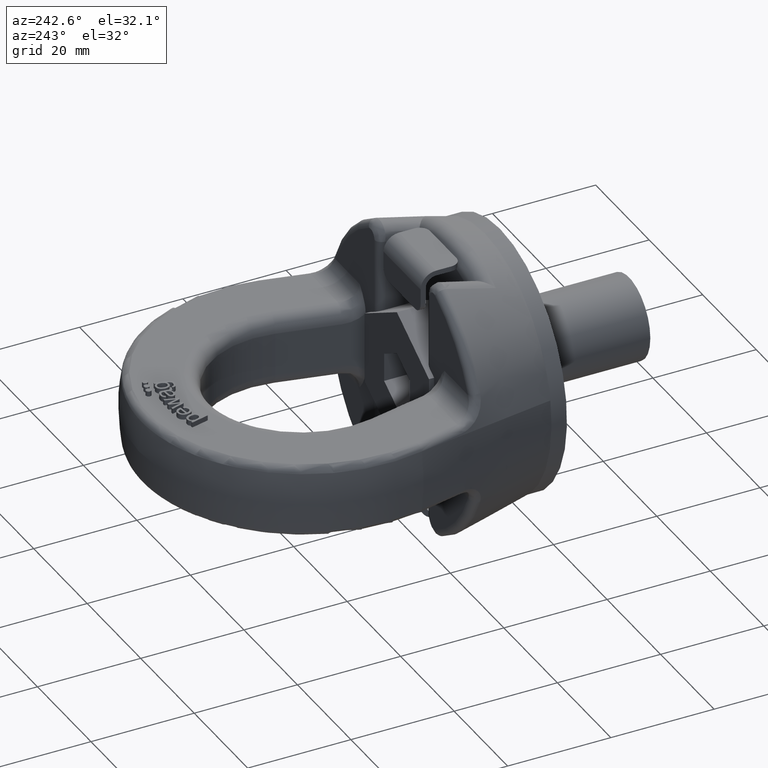
[diagram: clean part render]
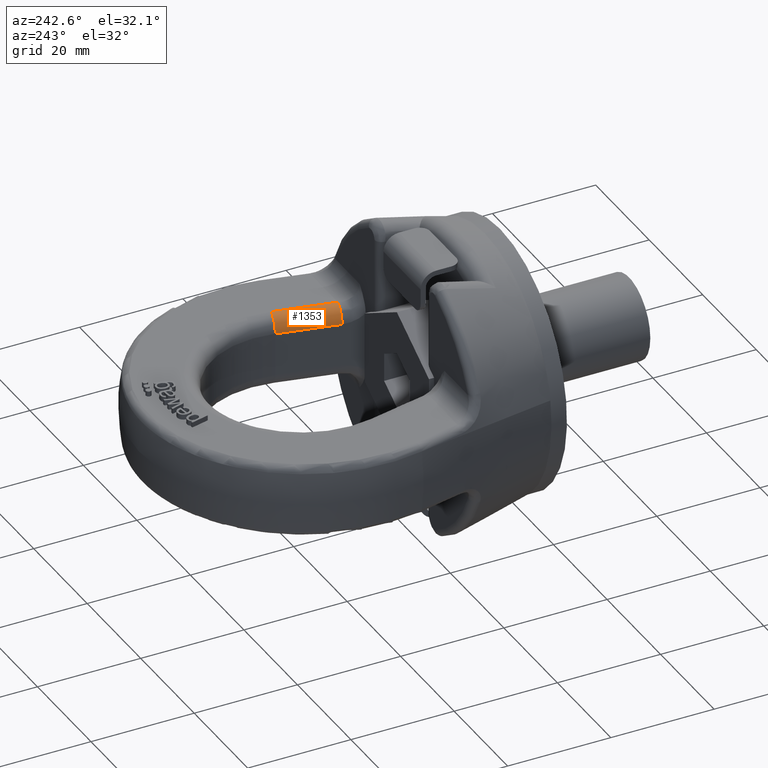
[diagram: same view with one face highlighted and labeled with its STEP entity id]
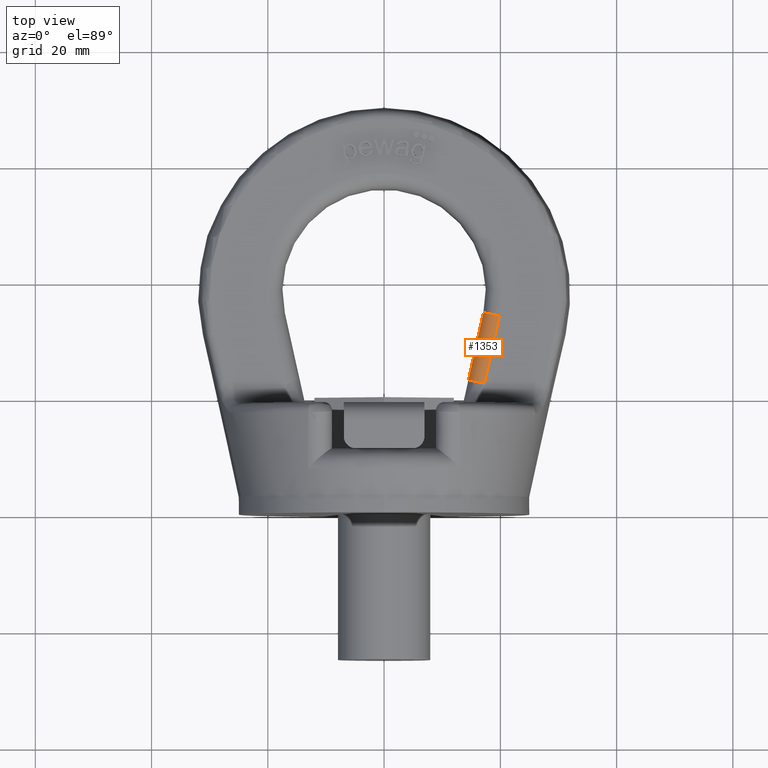
[diagram: same view with one face highlighted and labeled with its STEP entity id]
A machine part, auxiliary view. The second image highlights one B-rep face of the part: STEP entity #1353.
A second angle (top view) of the same face is appended — the face is thin or edge-on in the first view.
In plain terms, the highlighted cylindrical surface (edge-blend (fillet) strip) has radius 2.8 mm, axis along (0.217, 0.9762, -0).
Its self-contained STEP definition (entity closure, byte-faithful):
#1064=CYLINDRICAL_SURFACE('',#5200,2.8);
#1129=FACE_OUTER_BOUND('',#1869,.T.);
#1353=ADVANCED_FACE('',(#1129),#1064,.T.);
#1704=CIRCLE('',#5197,2.8);
#1705=CIRCLE('',#5199,2.8);
#1869=EDGE_LOOP('',(#2980,#2981,#2982,#2983));
#2102=LINE('',#6401,#2382);
#2153=LINE('',#6879,#2433);
#2382=VECTOR('',#5408,1.);
#2433=VECTOR('',#5525,1.);
#2980=ORIENTED_EDGE('',*,*,#4448,.F.);
#2981=ORIENTED_EDGE('',*,*,#4404,.F.);
#2982=ORIENTED_EDGE('',*,*,#4449,.F.);
#2983=ORIENTED_EDGE('',*,*,#4297,.F.);
#3909=VERTEX_POINT('',#6400);
#3910=VERTEX_POINT('',#6402);
#4004=VERTEX_POINT('',#6863);
#4009=VERTEX_POINT('',#6878);
#4297=EDGE_CURVE('',#3909,#3910,#2102,.T.);
#4404=EDGE_CURVE('',#4009,#4004,#2153,.T.);
#4448=EDGE_CURVE('',#4004,#3909,#1704,.T.);
#4449=EDGE_CURVE('',#3910,#4009,#1705,.T.);
#5197=AXIS2_PLACEMENT_3D('',#7189,#5629,#5630);
#5199=AXIS2_PLACEMENT_3D('',#7191,#5633,#5634);
#5200=AXIS2_PLACEMENT_3D('',#7192,#5635,#5636);
#5408=DIRECTION('',(-0.217024111805407,-0.976166243472429,1.24921364680897E-16));
#5525=DIRECTION('',(0.217024111805407,0.976166243472429,-1.24921364680897E-16));
#5629=DIRECTION('',(0.217024111805407,0.976166243472429,0.));
#5630=DIRECTION('',(0.97616624347243,-0.217024111805407,0.));
#5633=DIRECTION('',(-0.217024111805406,-0.976166243472429,0.));
#5634=DIRECTION('',(0.97616624347243,-0.217024111805406,0.));
#5635=DIRECTION('',(0.217024111805407,0.976166243472429,-1.24921364680897E-16));
#5636=DIRECTION('',(-0.97616624347243,0.217024111805409,0.));
#6400=CARTESIAN_POINT('',(19.8161747424903,34.0944105303502,7.00000000000001));
#6401=CARTESIAN_POINT('',(17.1033733449227,21.8923324869448,7.00000000000001));
#6402=CARTESIAN_POINT('',(17.2384717497033,22.5,7.00000000000001));
#6863=CARTESIAN_POINT('',(17.0829092607675,34.7020780434054,4.20000000000001));
#6878=CARTESIAN_POINT('',(14.5052062679805,23.1076675130551,4.20000000000001));
#6879=CARTESIAN_POINT('',(17.0829092607675,34.7020780434054,4.20000000000001));
#7189=CARTESIAN_POINT('',(19.8161747424903,34.0944105303502,4.20000000000001));
#7191=CARTESIAN_POINT('',(17.2384717497033,22.5,4.20000000000001));
#7192=CARTESIAN_POINT('',(31.6223824057126,87.1982858941934,4.2));